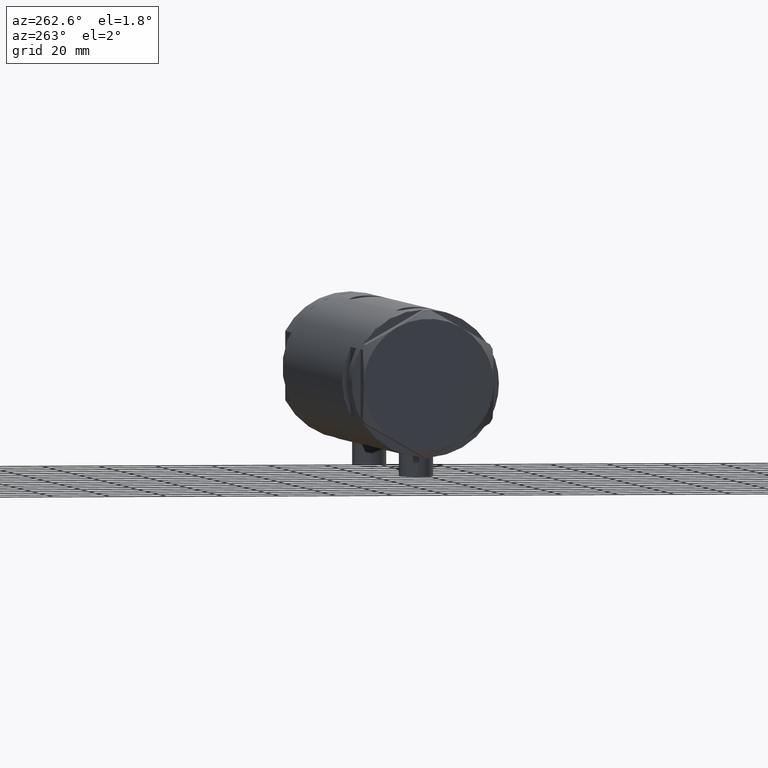
[diagram: clean part render]
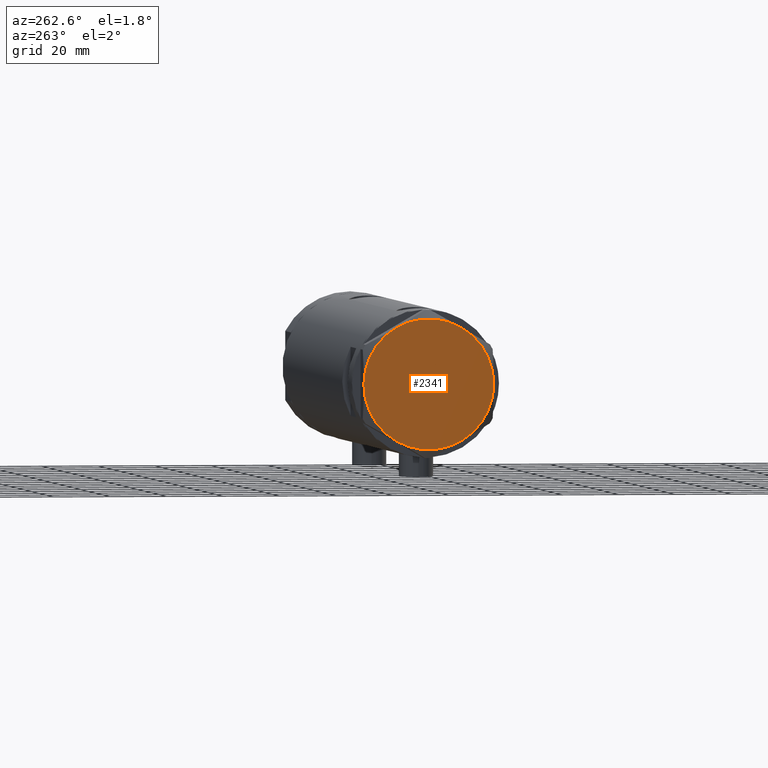
[diagram: same view with one face highlighted and labeled with its STEP entity id]
A machine part, auxiliary view. The second image highlights one B-rep face of the part: STEP entity #2341.
In plain terms, the highlighted planar face has unit normal (-1, -0, 0).
Its self-contained STEP definition (entity closure, byte-faithful):
#6 = FACE_OUTER_BOUND ( 'NONE', #2909, .T. ) ;
#110 = DIRECTION ( 'NONE',  ( 0.000000000000000000, 0.000000000000000000, 1.000000000000000000 ) ) ;
#119 = AXIS2_PLACEMENT_3D ( 'NONE', #380, #3382, #1879 ) ;
#130 = CARTESIAN_POINT ( 'NONE',  ( 0.000000000000000000, 0.000000000000000000, 9.000000000000000000 ) ) ;
#182 = ORIENTED_EDGE ( 'NONE', *, *, #4650, .T. ) ;
#208 = VERTEX_POINT ( 'NONE', #4545 ) ;
#227 = CARTESIAN_POINT ( 'NONE',  ( 11.49999999999990408, 19.91858428704219364, 9.000000000000000000 ) ) ;
#361 = DIRECTION ( 'NONE',  ( 1.000000000000000000, 0.000000000000000000, 0.000000000000000000 ) ) ;
#364 = VERTEX_POINT ( 'NONE', #2238 ) ;
#380 = CARTESIAN_POINT ( 'NONE',  ( 0.000000000000000000, 0.000000000000000000, 9.000000000000000000 ) ) ;
#592 = CIRCLE ( 'NONE', #2405, 23.00000000000004619 ) ;
#860 = AXIS2_PLACEMENT_3D ( 'NONE', #130, #4618, #1303 ) ;
#868 = CARTESIAN_POINT ( 'NONE',  ( 0.000000000000000000, 0.000000000000000000, 9.000000000000000000 ) ) ;
#1113 = CIRCLE ( 'NONE', #4141, 23.00000000000004619 ) ;
#1115 = DIRECTION ( 'NONE',  ( 0.000000000000000000, 0.000000000000000000, 1.000000000000000000 ) ) ;
#1303 = DIRECTION ( 'NONE',  ( 1.000000000000000000, 0.000000000000000000, 0.000000000000000000 ) ) ;
#1351 = AXIS2_PLACEMENT_3D ( 'NONE', #1554, #4183, #4477 ) ;
#1370 = ORIENTED_EDGE ( 'NONE', *, *, #2050, .T. ) ;
#1403 = VERTEX_POINT ( 'NONE', #4094 ) ;
#1486 = DIRECTION ( 'NONE',  ( 0.000000000000000000, 0.000000000000000000, 1.000000000000000000 ) ) ;
#1524 = CARTESIAN_POINT ( 'NONE',  ( 0.000000000000000000, 0.000000000000000000, 9.000000000000000000 ) ) ;
#1554 = CARTESIAN_POINT ( 'NONE',  ( 0.000000000000000000, 0.000000000000000000, 9.000000000000000000 ) ) ;
#1555 = ORIENTED_EDGE ( 'NONE', *, *, #3221, .T. ) ;
#1606 = DIRECTION ( 'NONE',  ( 1.000000000000000000, 0.000000000000000000, 0.000000000000000000 ) ) ;
#1819 = EDGE_CURVE ( 'NONE', #364, #3433, #4821, .T. ) ;
#1879 = DIRECTION ( 'NONE',  ( 1.000000000000000000, 0.000000000000000000, 0.000000000000000000 ) ) ;
#1944 = ORIENTED_EDGE ( 'NONE', *, *, #4800, .T. ) ;
#1994 = CARTESIAN_POINT ( 'NONE',  ( 0.000000000000000000, 0.000000000000000000, 9.000000000000000000 ) ) ;
#2016 = CARTESIAN_POINT ( 'NONE',  ( 11.50000000000018296, -19.91858428704203732, 9.000000000000000000 ) ) ;
#2050 = EDGE_CURVE ( 'NONE', #2189, #364, #3488, .T. ) ;
#2189 = VERTEX_POINT ( 'NONE', #3934 ) ;
#2220 = PLANE ( 'NONE',  #2386 ) ;
#2238 = CARTESIAN_POINT ( 'NONE',  ( -11.49999999999990585, -19.91858428704219364, 9.000000000000000000 ) ) ;
#2246 = CIRCLE ( 'NONE', #119, 23.00000000000004619 ) ;
#2341 = ADVANCED_FACE ( 'NONE', ( #6 ), #2220, .T. ) ;
#2363 = ORIENTED_EDGE ( 'NONE', *, *, #1819, .T. ) ;
#2386 = AXIS2_PLACEMENT_3D ( 'NONE', #1524, #1115, #3329 ) ;
#2405 = AXIS2_PLACEMENT_3D ( 'NONE', #868, #110, #1606 ) ;
#2588 = DIRECTION ( 'NONE',  ( 1.000000000000000000, 0.000000000000000000, 0.000000000000000000 ) ) ;
#2628 = AXIS2_PLACEMENT_3D ( 'NONE', #4583, #4635, #2588 ) ;
#2909 = EDGE_LOOP ( 'NONE', ( #1555, #1944, #4180, #182, #1370, #2363 ) ) ;
#3171 = CIRCLE ( 'NONE', #2628, 23.00000000000004619 ) ;
#3221 = EDGE_CURVE ( 'NONE', #3433, #1403, #1113, .T. ) ;
#3259 = EDGE_CURVE ( 'NONE', #3693, #208, #3171, .T. ) ;
#3329 = DIRECTION ( 'NONE',  ( 1.000000000000000000, 0.000000000000000000, -0.000000000000000000 ) ) ;
#3382 = DIRECTION ( 'NONE',  ( 0.000000000000000000, 0.000000000000000000, 1.000000000000000000 ) ) ;
#3433 = VERTEX_POINT ( 'NONE', #2016 ) ;
#3488 = CIRCLE ( 'NONE', #1351, 23.00000000000004619 ) ;
#3693 = VERTEX_POINT ( 'NONE', #227 ) ;
#3934 = CARTESIAN_POINT ( 'NONE',  ( -23.00000000000004619, -8.112498833180673323E-14, 9.000000000000000000 ) ) ;
#4094 = CARTESIAN_POINT ( 'NONE',  ( 22.99999999999995026, 2.373657066004705010E-13, 9.000000000000000000 ) ) ;
#4141 = AXIS2_PLACEMENT_3D ( 'NONE', #1994, #1486, #361 ) ;
#4180 = ORIENTED_EDGE ( 'NONE', *, *, #3259, .T. ) ;
#4183 = DIRECTION ( 'NONE',  ( 0.000000000000000000, 0.000000000000000000, 1.000000000000000000 ) ) ;
#4477 = DIRECTION ( 'NONE',  ( 1.000000000000000000, 0.000000000000000000, 0.000000000000000000 ) ) ;
#4545 = CARTESIAN_POINT ( 'NONE',  ( -11.50000000000004441, 19.91858428704211548, 9.000000000000000000 ) ) ;
#4583 = CARTESIAN_POINT ( 'NONE',  ( 0.000000000000000000, 0.000000000000000000, 9.000000000000000000 ) ) ;
#4618 = DIRECTION ( 'NONE',  ( 0.000000000000000000, 0.000000000000000000, 1.000000000000000000 ) ) ;
#4635 = DIRECTION ( 'NONE',  ( 0.000000000000000000, 0.000000000000000000, 1.000000000000000000 ) ) ;
#4650 = EDGE_CURVE ( 'NONE', #208, #2189, #2246, .T. ) ;
#4800 = EDGE_CURVE ( 'NONE', #1403, #3693, #592, .T. ) ;
#4821 = CIRCLE ( 'NONE', #860, 23.00000000000004619 ) ;